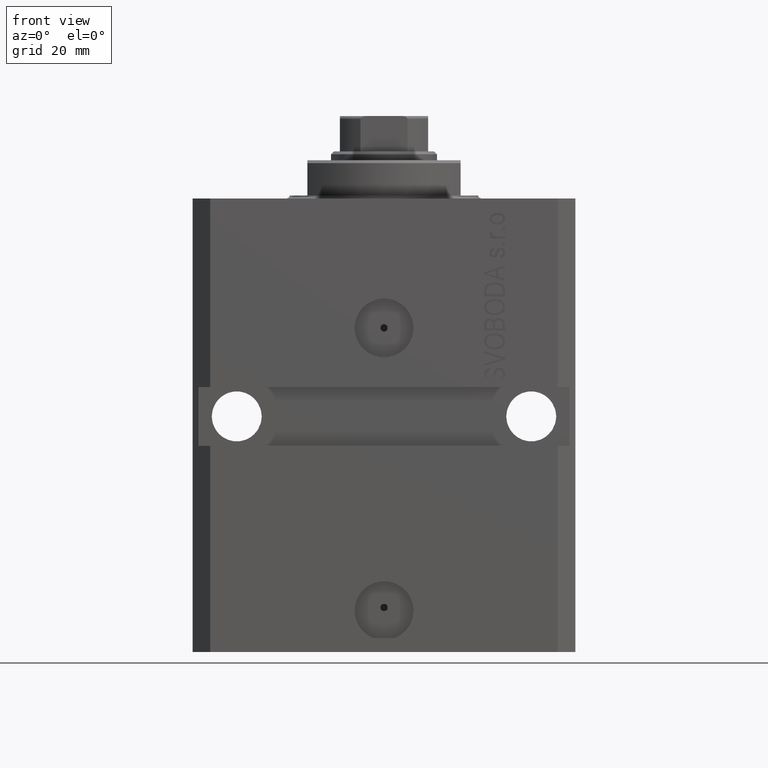
[diagram: clean part render]
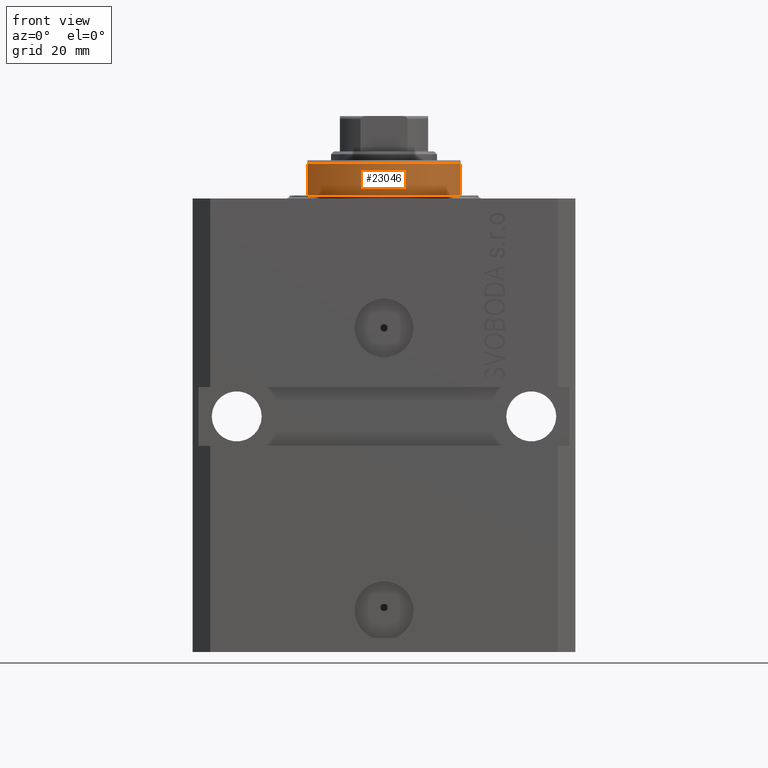
[diagram: same view with one face highlighted and labeled with its STEP entity id]
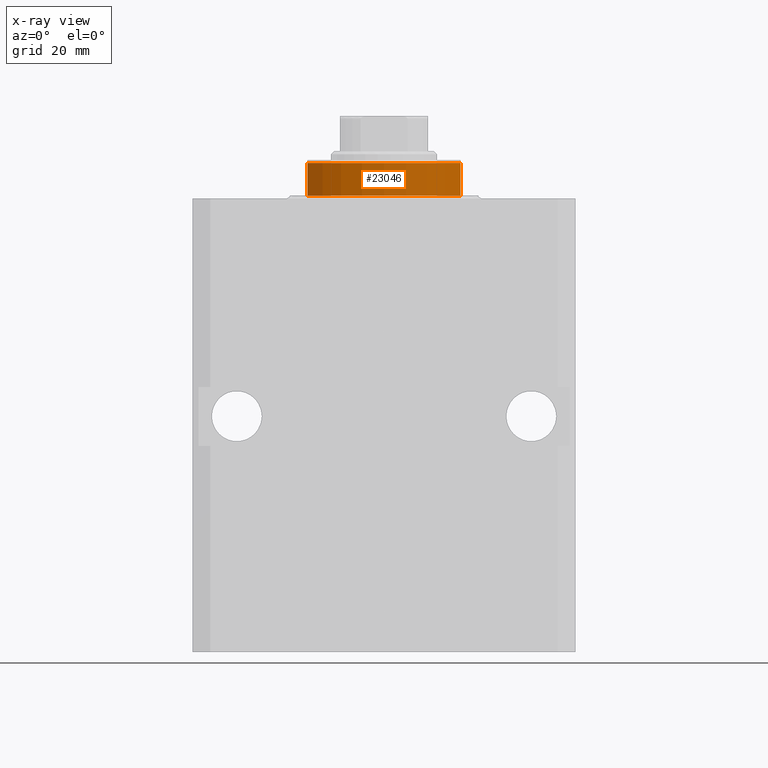
[diagram: x-ray of the same camera — body ghosted, the highlighted face saturated]
A machine part, front view. The second image highlights one B-rep face of the part: STEP entity #23046.
The next image is the same camera in x-ray: the body ghosted, the highlighted face saturated — about 0% of this face is hidden behind the body in this view.
In plain terms, the highlighted cylindrical surface (partial cylindrical patch) has radius 16 mm, axis along (0, 0, -1).
Its self-contained STEP definition (entity closure, byte-faithful):
#614 = DIRECTION ( 'NONE',  ( -1.000000000000000000, 0.000000000000000000, 0.000000000000000000 ) ) ;
#3606 = ORIENTED_EDGE ( 'NONE', *, *, #3973, .T. ) ;
#3973 = EDGE_CURVE ( 'NONE', #6638, #23104, #32024, .T. ) ;
#4171 = AXIS2_PLACEMENT_3D ( 'NONE', #44770, #14621, #614 ) ;
#4928 = ORIENTED_EDGE ( 'NONE', *, *, #15853, .F. ) ;
#4962 = CIRCLE ( 'NONE', #4171, 16.00000000000000000 ) ;
#5933 = EDGE_CURVE ( 'NONE', #23104, #9995, #4962, .T. ) ;
#6027 = CARTESIAN_POINT ( 'NONE',  ( 13.00000000000000000, -9.327379053088815652, -0.4999999999999995559 ) ) ;
#6638 = VERTEX_POINT ( 'NONE', #32831 ) ;
#7853 = EDGE_LOOP ( 'NONE', ( #4928, #22065, #3606, #19721 ) ) ;
#8874 = CARTESIAN_POINT ( 'NONE',  ( 0.000000000000000000, 0.000000000000000000, -0.4999999999999995559 ) ) ;
#8909 = CARTESIAN_POINT ( 'NONE',  ( 0.000000000000000000, 0.000000000000000000, -6.500000000000000000 ) ) ;
#9995 = VERTEX_POINT ( 'NONE', #37404 ) ;
#12289 = CYLINDRICAL_SURFACE ( 'NONE', #34670, 16.00000000000000000 ) ;
#13953 = CIRCLE ( 'NONE', #13979, 16.00000000000000000 ) ;
#13979 = AXIS2_PLACEMENT_3D ( 'NONE', #8874, #30349, #38307 ) ;
#14416 = CARTESIAN_POINT ( 'NONE',  ( -13.00000000000000000, -9.327379053088815652, -6.000000000000023981 ) ) ;
#14621 = DIRECTION ( 'NONE',  ( 0.000000000000000000, 0.000000000000000000, 1.000000000000000000 ) ) ;
#15853 = EDGE_CURVE ( 'NONE', #43579, #9995, #29056, .T. ) ;
#17492 = DIRECTION ( 'NONE',  ( 0.000000000000000000, 0.000000000000000000, -1.000000000000000000 ) ) ;
#19721 = ORIENTED_EDGE ( 'NONE', *, *, #5933, .T. ) ;
#20247 = DIRECTION ( 'NONE',  ( -0.000000000000000000, -0.000000000000000000, 1.000000000000000000 ) ) ;
#20721 = FACE_OUTER_BOUND ( 'NONE', #7853, .T. ) ;
#22065 = ORIENTED_EDGE ( 'NONE', *, *, #43752, .T. ) ;
#23046 = ADVANCED_FACE ( 'NONE', ( #20721 ), #12289, .T. ) ;
#23104 = VERTEX_POINT ( 'NONE', #14416 ) ;
#23388 = DIRECTION ( 'NONE',  ( 1.000000000000000000, 0.000000000000000000, 0.000000000000000000 ) ) ;
#24911 = VECTOR ( 'NONE', #41770, 1000.000000000000000 ) ;
#25037 = CARTESIAN_POINT ( 'NONE',  ( -13.00000000000000000, -9.327379053088813876, -6.500000000000000000 ) ) ;
#25438 = CARTESIAN_POINT ( 'NONE',  ( 13.00000000000000000, -9.327379053088813876, -6.500000000000000000 ) ) ;
#29056 = LINE ( 'NONE', #25438, #31459 ) ;
#30349 = DIRECTION ( 'NONE',  ( -0.000000000000000000, -0.000000000000000000, -1.000000000000000000 ) ) ;
#31459 = VECTOR ( 'NONE', #17492, 1000.000000000000000 ) ;
#32024 = LINE ( 'NONE', #25037, #24911 ) ;
#32831 = CARTESIAN_POINT ( 'NONE',  ( -13.00000000000000000, -9.327379053088815652, -0.4999999999999995559 ) ) ;
#34670 = AXIS2_PLACEMENT_3D ( 'NONE', #8909, #20247, #23388 ) ;
#37404 = CARTESIAN_POINT ( 'NONE',  ( 13.00000000000000000, -9.327379053088815652, -6.000000000000023981 ) ) ;
#38307 = DIRECTION ( 'NONE',  ( 1.000000000000000000, 0.000000000000000000, 0.000000000000000000 ) ) ;
#41770 = DIRECTION ( 'NONE',  ( 0.000000000000000000, 0.000000000000000000, -1.000000000000000000 ) ) ;
#43579 = VERTEX_POINT ( 'NONE', #6027 ) ;
#43752 = EDGE_CURVE ( 'NONE', #43579, #6638, #13953, .T. ) ;
#44770 = CARTESIAN_POINT ( 'NONE',  ( 0.000000000000000000, 0.000000000000000000, -6.000000000000023981 ) ) ;